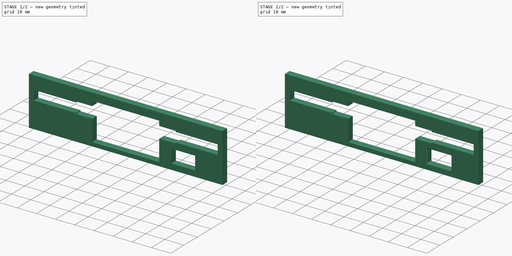
[diagram: build sequence overview — one tinted view per stage of 2, left to right]
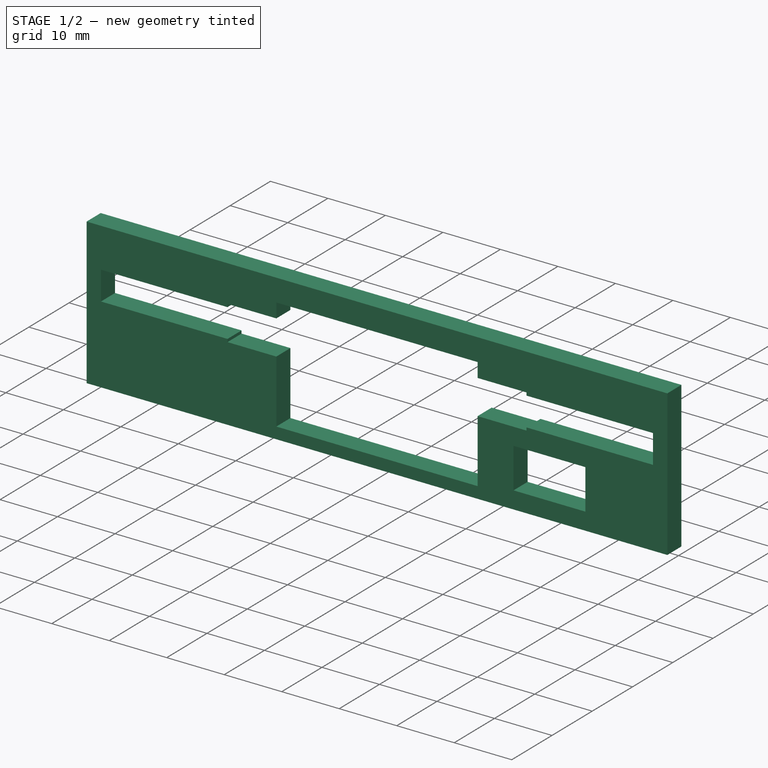
[diagram: stage 1 of 2 — iso view after this stage's code; geometry added in this stage tinted green]
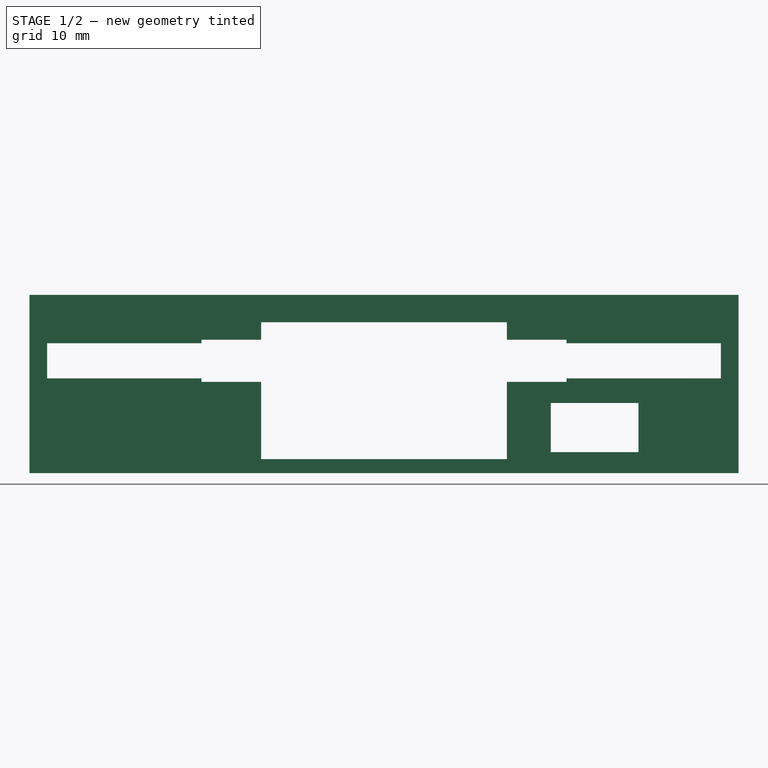
[diagram: stage 1 of 2 — front view after this stage's code; geometry added in this stage tinted green]
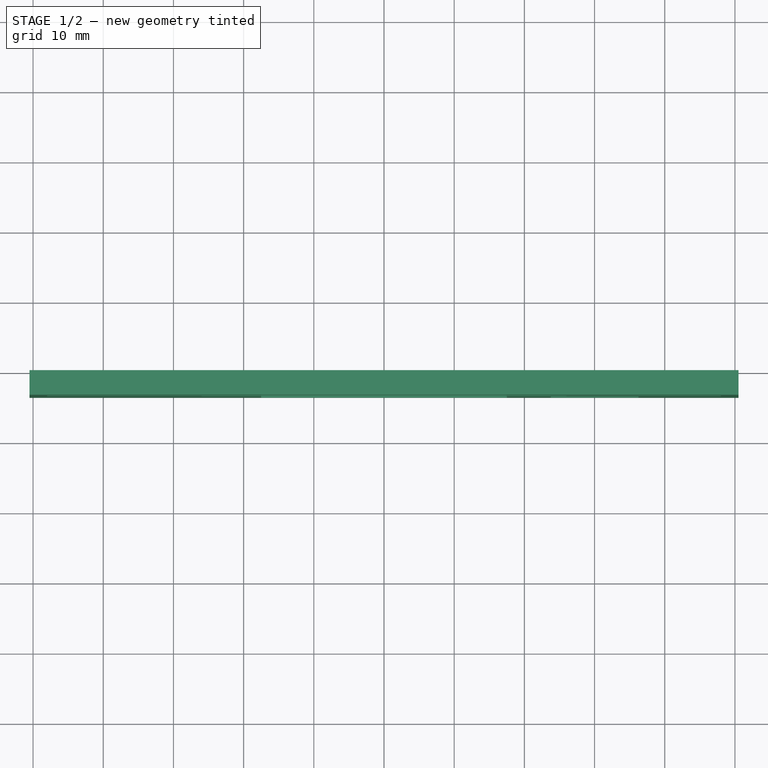
[diagram: stage 1 of 2 — top view after this stage's code; geometry added in this stage tinted green]
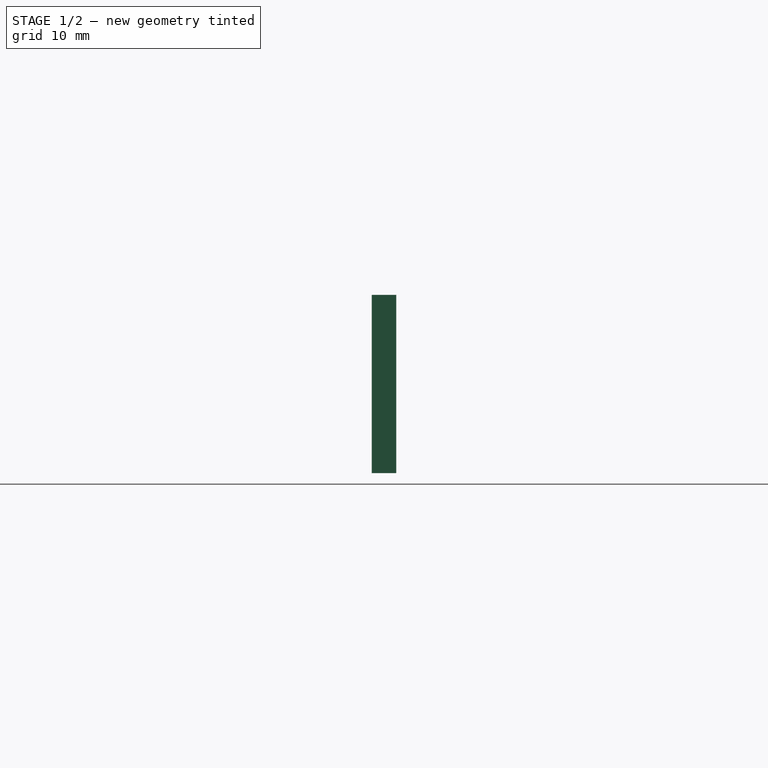
[diagram: stage 1 of 2 — right view after this stage's code; geometry added in this stage tinted green]
FCSTD DOCUMENT  (FreeCAD 0.21R33771 (Git))
Label: Bezel
License: All rights reserved
LicenseURL: https://en.wikipedia.org/wiki/All_rights_reserved
objects: Sketcher::SketchObject×2, PartDesign::Pad×1, PartDesign::Plane×1, PartDesign::Pocket×1, PartDesign::Fillet×1, PartDesign::Body×1, App::Part×1
note: 10 computed .brp shape members not serialized (recipe doc carries the construction recipe); baked Part::Feature solids carry a one-line shape summary decoded from their .brp

FEATURE [Sketcher::SketchObject] Sketch
  FullyConstrained = true
  MapMode = 5
  Placement = pos=(0,0,0) rot=(1,0,0;1.5708rad)
  Support = -> [XZ_Plane001]
  sketch-geometry (5):
    g0: LineSegment StartX=-50.5 StartY=12.7 StartZ=0 EndX=-50.5 EndY=-12.7 EndZ=0
    g1: LineSegment StartX=-50.5 StartY=-12.7 StartZ=0 EndX=50.5 EndY=-12.7 EndZ=0
    g2: LineSegment StartX=50.5 StartY=-12.7 StartZ=0 EndX=50.5 EndY=12.7 EndZ=0
    g3: LineSegment StartX=50.5 StartY=12.7 StartZ=0 EndX=-50.5 EndY=12.7 EndZ=0
    g4: GeomPoint X=0 Y=0 Z=0
  constraints (12):
    c: Coincident(g0,g1)
    c: Coincident(g1,g2)
    c: Coincident(g2,g3)
    c: Coincident(g3,g0)
    c: Horizontal(g1)
    c: Horizontal(g3)
    c: Vertical(g0)
    c: Vertical(g2)
    c: Symmetric(g1,g0,g4)
    c: Coincident(g4,g-1)
    c: DistanceX(g3,g3) = 101
    c: DistanceY(g0,g0) = 25.4
FEATURE [PartDesign::Pad] Pad
  Direction = (0,-1,2e-16)
  Length = 3.5
  Length2 = 10
  Placement = pos=(0,0,0) rot=(1,0,0;1.5708rad)
  Profile = -> Sketch
  ReferenceAxis = -> Sketch [N_Axis]
  Refine = true
  Type = 0
FEATURE [PartDesign::Plane] DatumPlane
  AttachmentOffset = pos=(0,0,3.5) rot=(0,0,1;0rad)
  Length = 115.213
  MapMode = 5
  Placement = pos=(0,-3.5,-8e-16) rot=(1,0,0;1.5708rad)
  ResizeMode = 0
  Support = -> [XZ_Plane001]
  Width = 64.2127
FEATURE [Sketcher::SketchObject] Sketch001
  ExternalGeometry = -> [Pad]
  FullyConstrained = true
  MapMode = 5
  Placement = pos=(0,-3.5,-8e-16) rot=(1,0,0;1.5708rad)
  Support = -> [DatumPlane]
  sketch-geometry (25):
    g0: LineSegment StartX=-48 StartY=5.8 StartZ=0 EndX=-48 EndY=0.8 EndZ=0
    g1: LineSegment StartX=-48 StartY=0.8 StartZ=0 EndX=-26 EndY=0.8 EndZ=0
    g2: LineSegment StartX=-26 StartY=0.8 StartZ=0 EndX=-26 EndY=0.3 EndZ=0
    g3: LineSegment StartX=-26 StartY=0.3 StartZ=0 EndX=-17.5 EndY=0.3 EndZ=0
    g4: LineSegment StartX=-17.5 StartY=0.3 StartZ=0 EndX=-17.5 EndY=-10.7 EndZ=0
    g5: LineSegment StartX=-17.5 StartY=-10.7 StartZ=0 EndX=17.5 EndY=-10.7 EndZ=0
    g6: LineSegment StartX=26 StartY=0.3 StartZ=0 EndX=26 EndY=0.8 EndZ=0
    g7: LineSegment StartX=26 StartY=0.8 StartZ=0 EndX=48 EndY=0.8 EndZ=0
    g8: LineSegment StartX=48 StartY=0.8 StartZ=0 EndX=48 EndY=5.8 EndZ=0
    g9: LineSegment StartX=48 StartY=5.8 StartZ=0 EndX=26 EndY=5.8 EndZ=0
    g10: LineSegment StartX=26 StartY=5.8 StartZ=0 EndX=26 EndY=6.3 EndZ=0
    g11: LineSegment StartX=26 StartY=6.3 StartZ=0 EndX=17.5 EndY=6.3 EndZ=0
    g12: LineSegment StartX=17.5 StartY=6.3 StartZ=0 EndX=17.5 EndY=8.8 EndZ=0
    g13: LineSegment StartX=17.5 StartY=8.8 StartZ=0 EndX=-17.5 EndY=8.8 EndZ=0
    g14: LineSegment StartX=-17.5 StartY=8.8 StartZ=0 EndX=-17.5 EndY=6.3 EndZ=0
    g15: LineSegment StartX=-17.5 StartY=6.3 StartZ=0 EndX=-26 EndY=6.3 EndZ=0
    g16: LineSegment StartX=-26 StartY=5.8 StartZ=0 EndX=-48 EndY=5.8 EndZ=0
    g17: LineSegment StartX=17.5 StartY=-10.7 StartZ=0 EndX=17.5 EndY=0.3 EndZ=0
    g18: LineSegment StartX=17.5 StartY=0.3 StartZ=0 EndX=26 EndY=0.3 EndZ=0
    g19: LineSegment StartX=-26 StartY=6.3 StartZ=0 EndX=-26 EndY=5.8 EndZ=0
    g20: LineSegment StartX=23.75 StartY=-2.7 StartZ=0 EndX=23.75 EndY=-9.7 EndZ=0
    g21: LineSegment StartX=23.75 StartY=-9.7 StartZ=0 EndX=36.25 EndY=-9.7 EndZ=0
    g22: LineSegment StartX=36.25 StartY=-9.7 StartZ=0 EndX=36.25 EndY=-2.7 EndZ=0
    g23: LineSegment StartX=36.25 StartY=-2.7 StartZ=0 EndX=23.75 EndY=-2.7 EndZ=0
    g24: GeomPoint X=30 Y=-6.2 Z=0
  constraints (69):
    c: Coincident(g12,g13)
    c: Coincident(g13,g14)
    c: Parallel(g11,g-1)
    c: Coincident(g5,g17)
    c: Parallel(g17,g-2)
    c: DistanceX(g13,g13) = 35
    c: Parallel(g5,g-1)
    c: Symmetric(g13,g12,g-2)
    c: Coincident(g6,g7)
    c: Coincident(g3,g4)
    c: Parallel(g3,g-1)
    c: Parallel(g4,g-2)
    c: Coincident(g6,g18)
    c: Coincident(g17,g18)
    c: Parallel(g18,g-1)
    c: Parallel(g7,g-1)
    c: Parallel(g6,g-2)
    c: Coincident(g4,g5)
    c: Coincident(g2,g3)
    c: Coincident(g14,g15)
    c: Parallel(g14,g-2)
    c: Coincident(g19,g15)
    c: Parallel(g19,g-2)
    c: Equal(g5,g13)
    c: Symmetric(g3,g17,g-2)
    c: Coincident(g16,g19)
    c: Parallel(g16,g-1)
    c: Parallel(g15,g-1)
    c: Coincident(g0,g16)
    c: Parallel(g0,g-2)
    c: Coincident(g1,g2)
    c: Parallel(g2,g-2)
    c: Coincident(g7,g8)
    c: Coincident(g9,g10)
    c: Coincident(g8,g9)
    c: Coincident(g10,g11)
    c: Coincident(g11,g12)
    c: Parallel(g1,g-1)
    c: DistanceX(g15,g10) = 52
    c: Parallel(g10,g-2)
    c: Symmetric(g16,g9,g-2)
    c: Equal(g3,g15)
    c: Parallel(g12,g-2)
    c: Equal(g18,g11)
    c: Parallel(g9,g-1)
    c: DistanceX(g0,g8) = 96
    c: Coincident(g0,g1)
    c: Symmetric(g0,g7,g-2)
    c: Parallel(g8,g-2)
    c: DistanceY(g6,g6) = 0.5
    c: Equal(g19,g6)
    c: DistanceY(g14,g14) = 2.5
    c: Equal(g14,g12)
    c: DistanceY(g0,g0) = 5
    c: DistanceY(g17,g17) = 11
    c: DistanceY(g-6,g4) = 2
    c: Coincident(g20,g21)
    c: Coincident(g21,g22)
    c: Coincident(g22,g23)
    c: Coincident(g23,g20)
    c: Horizontal(g21)
    c: Horizontal(g23)
    c: Vertical(g20)
    c: Vertical(g22)
    c: Symmetric(g21,g20,g24)
    c: DistanceX(g23,g23) = 12.5
    c: DistanceY(g22,g22) = 7
    c: DistanceX(g24) = 30
    c: DistanceY(g-5,g24) = 6.5
FEATURE [PartDesign::Pocket] Pocket
  BaseFeature = -> Pad
  Direction = (0,1,2e-16)
  Length = 5
  Length2 = 5
  Midplane = true
  Placement = pos=(0,0,0) rot=(1,0,0;1.5708rad)
  Profile = -> Sketch001
  ReferenceAxis = -> Sketch001 [N_Axis]
  Refine = true
  Type = 1
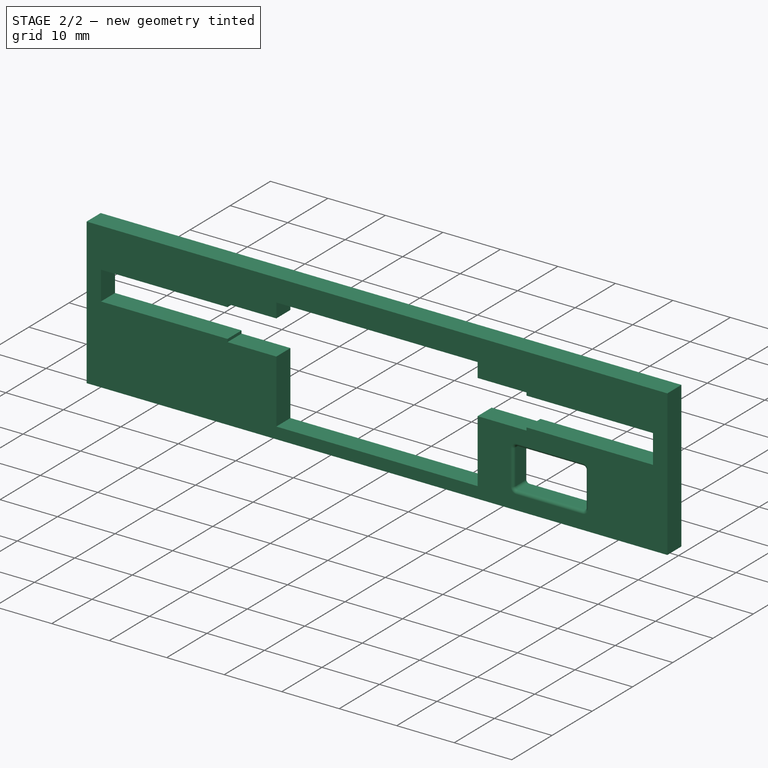
[diagram: stage 2 of 2 — iso view after this stage's code; geometry added in this stage tinted green]
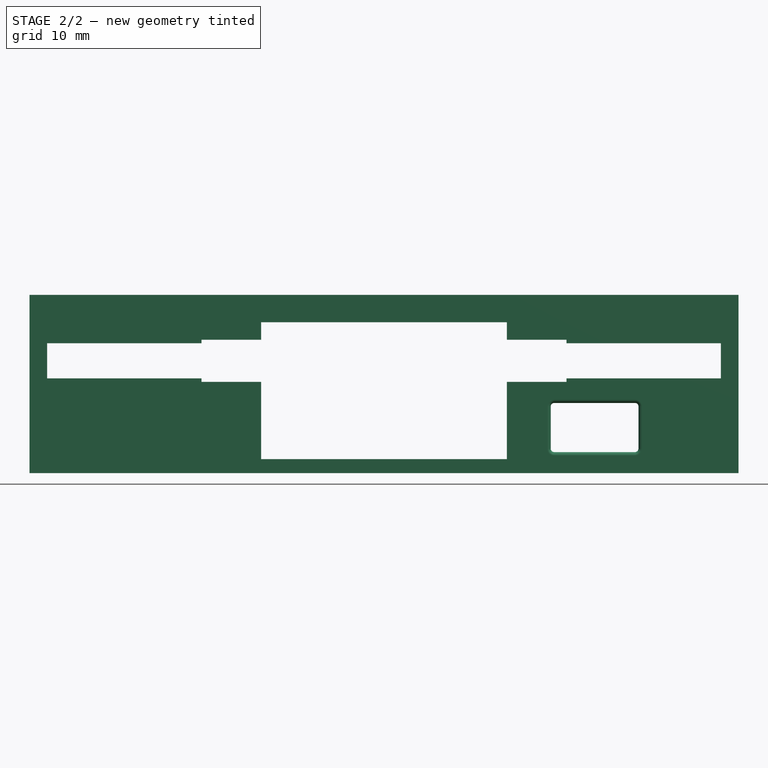
[diagram: stage 2 of 2 — front view after this stage's code; geometry added in this stage tinted green]
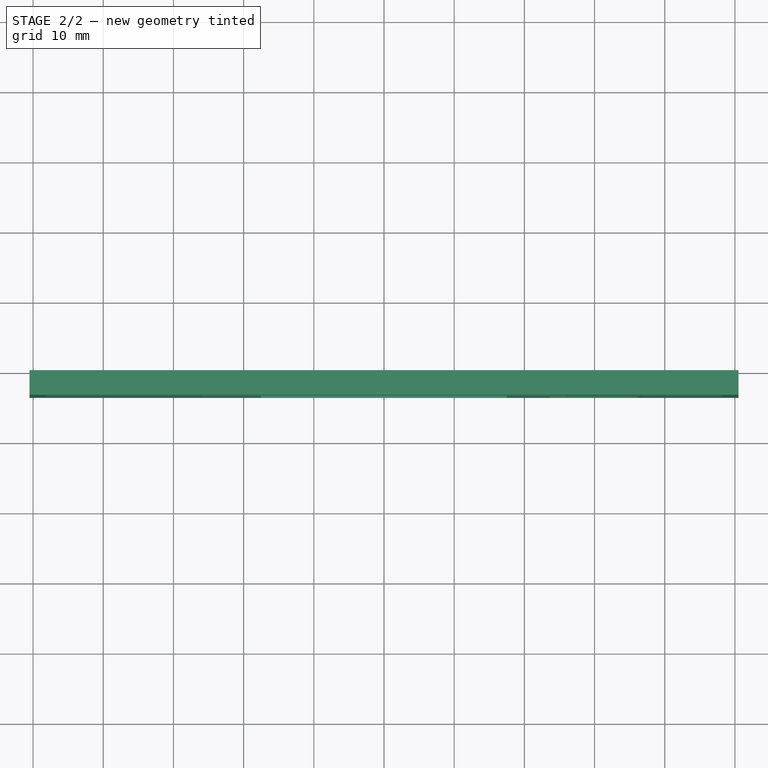
[diagram: stage 2 of 2 — top view after this stage's code; geometry added in this stage tinted green]
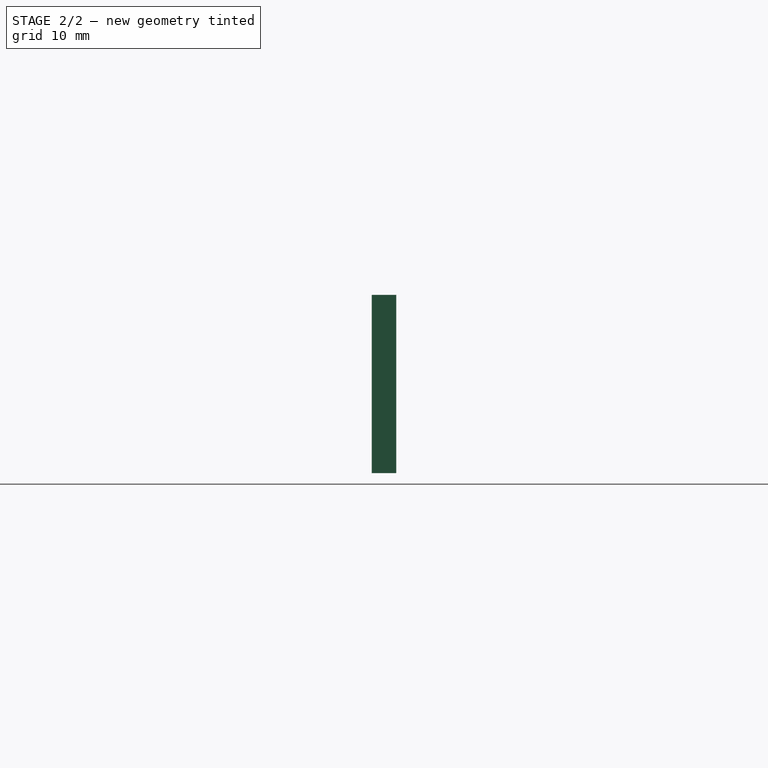
[diagram: stage 2 of 2 — right view after this stage's code; geometry added in this stage tinted green]
FEATURE [PartDesign::Fillet] Fillet
  Base = -> Pocket [Face7,Face10,Face8,Face9]
  BaseFeature = -> Pocket
  Placement = pos=(0,0,0) rot=(1,0,0;1.5708rad)
  Radius = 0.5
  Refine = true
  SupportTransform = false
  UseAllEdges = false
FEATURE [PartDesign::Body] Body
  Group = -> [Sketch,Pad,DatumPlane,Sketch001,Pocket,Fillet]
  Origin = -> Origin001
  Tip = -> Fillet
FEATURE [App::Part] Part
  Group = -> [Body]
  Origin = -> Origin
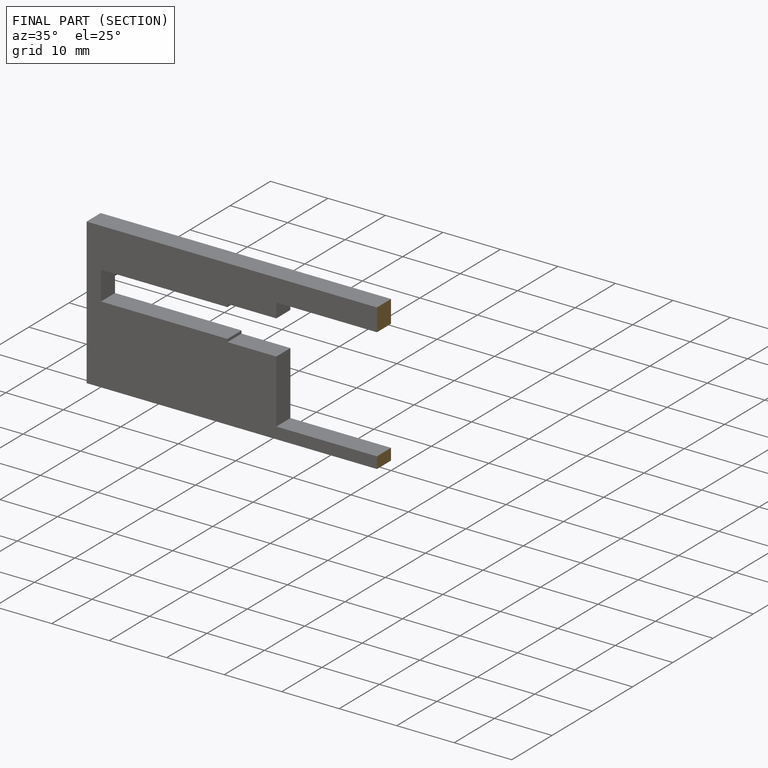
[diagram: finished part — half-section view (interior)]
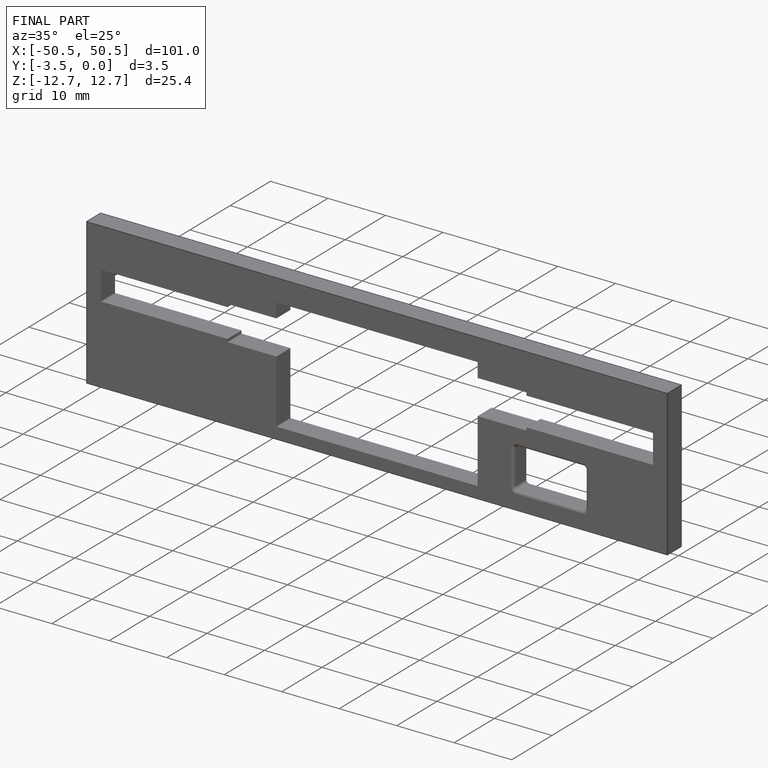
[diagram: finished part — iso view with bounding-box wireframe]
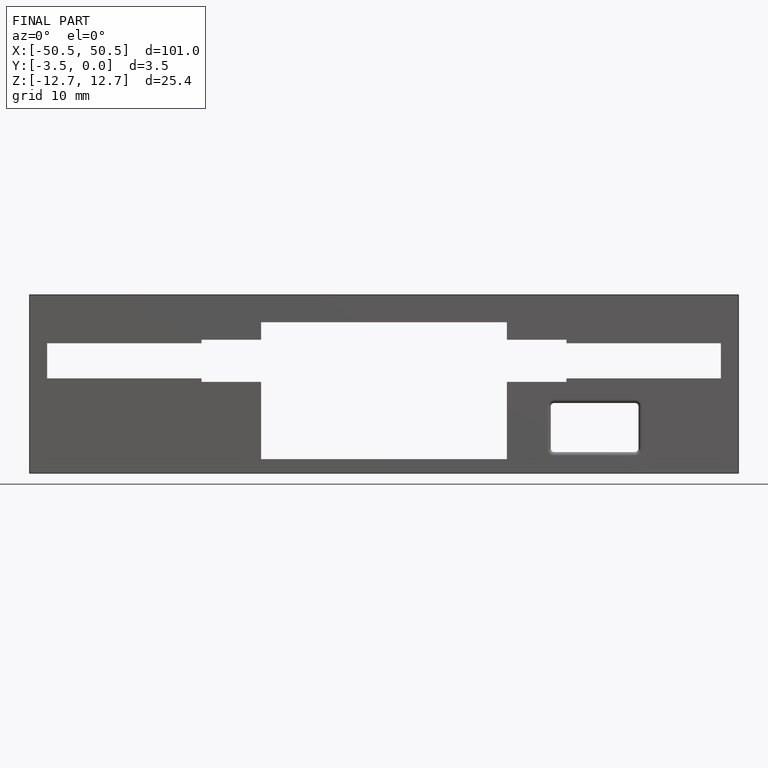
[diagram: finished part — front view with bounding-box wireframe]
